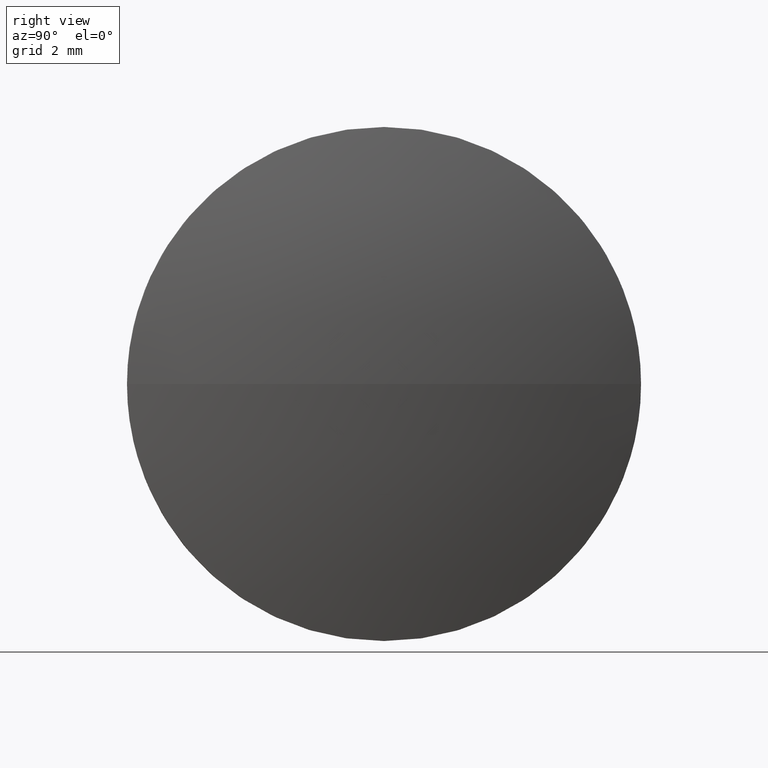
[diagram: clean part render]
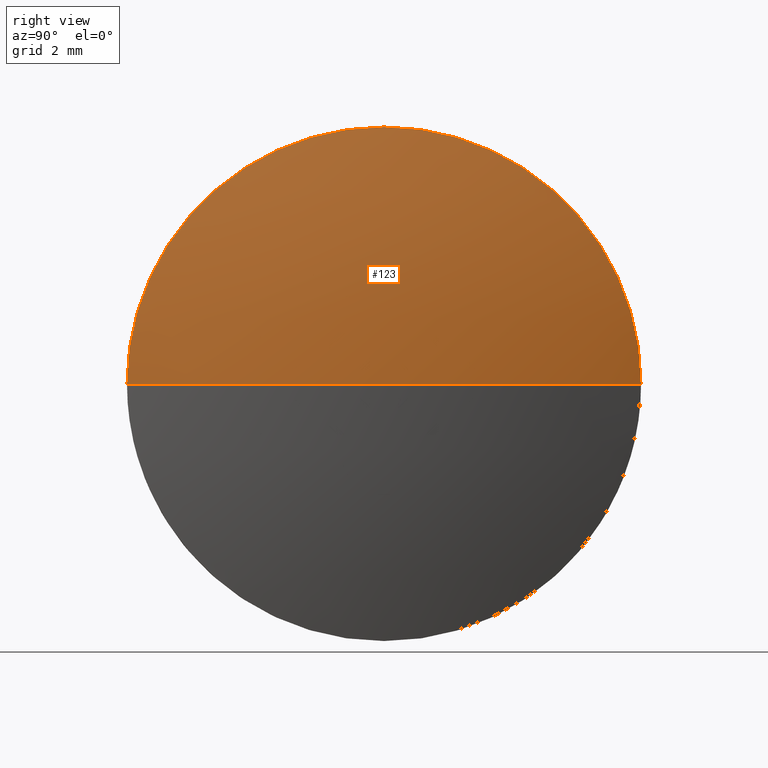
[diagram: same view with one face highlighted and labeled with its STEP entity id]
A machine part, right view. The second image highlights one B-rep face of the part: STEP entity #123.
In plain terms, the highlighted spherical surface has radius 32.5 mm.
Its self-contained STEP definition (entity closure, byte-faithful):
#4 = AXIS2_PLACEMENT_3D ( 'NONE', #157, #144, #39 ) ;
#5 = ORIENTED_EDGE ( 'NONE', *, *, #150, .F. ) ;
#7 = AXIS2_PLACEMENT_3D ( 'NONE', #171, #61, #44 ) ;
#11 = CIRCLE ( 'NONE', #164, 7.999999999999992900 ) ;
#16 = AXIS2_PLACEMENT_3D ( 'NONE', #100, #183, #77 ) ;
#27 = CARTESIAN_POINT ( 'NONE',  ( 526.6602977152133500, 67.77708632238275800, 0.0000000000000000000 ) ) ;
#28 = ORIENTED_EDGE ( 'NONE', *, *, #119, .T. ) ;
#37 = CARTESIAN_POINT ( 'NONE',  ( 525.6602977152133500, 59.77708632238271500, 0.0000000000000000000 ) ) ;
#38 = DIRECTION ( 'NONE',  ( -1.000000000000000000, -0.0000000000000000000, -0.0000000000000000000 ) ) ;
#39 = DIRECTION ( 'NONE',  ( 0.0000000000000000000, -1.000000000000000000, -1.224646799147353500E-016 ) ) ;
#40 = VERTEX_POINT ( 'NONE', #96 ) ;
#44 = DIRECTION ( 'NONE',  ( 0.0000000000000000000, 0.0000000000000000000, 1.000000000000000000 ) ) ;
#54 = DIRECTION ( 'NONE',  ( 0.0000000000000000000, 0.0000000000000000000, 1.000000000000000000 ) ) ;
#61 = DIRECTION ( 'NONE',  ( -1.000000000000000000, -0.0000000000000000000, -0.0000000000000000000 ) ) ;
#75 = DIRECTION ( 'NONE',  ( 0.0000000000000000000, 0.0000000000000000000, -1.000000000000000000 ) ) ;
#77 = DIRECTION ( 'NONE',  ( 0.0000000000000000000, -1.000000000000000000, 0.0000000000000000000 ) ) ;
#95 = CIRCLE ( 'NONE', #4, 32.50000000000001400 ) ;
#96 = CARTESIAN_POINT ( 'NONE',  ( 525.6602977152133500, 67.77708632238261500, 7.999999999999992900 ) ) ;
#98 = CARTESIAN_POINT ( 'NONE',  ( 525.6602977152133500, 75.77708632238267200, 9.797174393178705400E-016 ) ) ;
#100 = CARTESIAN_POINT ( 'NONE',  ( 494.1602977152133500, 67.77708632238275800, 0.0000000000000000000 ) ) ;
#101 = CIRCLE ( 'NONE', #163, 32.50000000000002800 ) ;
#102 = EDGE_CURVE ( 'NONE', #105, #40, #11, .T. ) ;
#105 = VERTEX_POINT ( 'NONE', #37 ) ;
#106 = VERTEX_POINT ( 'NONE', #98 ) ;
#113 = CIRCLE ( 'NONE', #7, 7.999999999999992900 ) ;
#118 = DIRECTION ( 'NONE',  ( -1.000000000000000000, 0.0000000000000000000, 0.0000000000000000000 ) ) ;
#119 = EDGE_CURVE ( 'NONE', #121, #106, #95, .T. ) ;
#121 = VERTEX_POINT ( 'NONE', #27 ) ;
#123 = ADVANCED_FACE ( 'NONE', ( #134 ), #181, .T. ) ;
#126 = CARTESIAN_POINT ( 'NONE',  ( 525.6602977152133500, 67.77708632238261500, 0.0000000000000000000 ) ) ;
#134 = FACE_OUTER_BOUND ( 'NONE', #143, .T. ) ;
#143 = EDGE_LOOP ( 'NONE', ( #5, #28, #177, #174 ) ) ;
#144 = DIRECTION ( 'NONE',  ( 0.0000000000000000000, -1.224646799147353200E-016, 1.000000000000000000 ) ) ;
#150 = EDGE_CURVE ( 'NONE', #121, #105, #101, .T. ) ;
#155 = CARTESIAN_POINT ( 'NONE',  ( 494.1602977152133500, 67.77708632238275800, 0.0000000000000000000 ) ) ;
#157 = CARTESIAN_POINT ( 'NONE',  ( 494.1602977152133500, 67.77708632238275800, 0.0000000000000000000 ) ) ;
#163 = AXIS2_PLACEMENT_3D ( 'NONE', #155, #75, #118 ) ;
#164 = AXIS2_PLACEMENT_3D ( 'NONE', #126, #38, #54 ) ;
#171 = CARTESIAN_POINT ( 'NONE',  ( 525.6602977152133500, 67.77708632238261500, 0.0000000000000000000 ) ) ;
#174 = ORIENTED_EDGE ( 'NONE', *, *, #102, .F. ) ;
#177 = ORIENTED_EDGE ( 'NONE', *, *, #186, .F. ) ;
#181 = SPHERICAL_SURFACE ( 'NONE', #16, 32.50000000000001400 ) ;
#183 = DIRECTION ( 'NONE',  ( 0.0000000000000000000, 0.0000000000000000000, 1.000000000000000000 ) ) ;
#186 = EDGE_CURVE ( 'NONE', #40, #106, #113, .T. ) ;